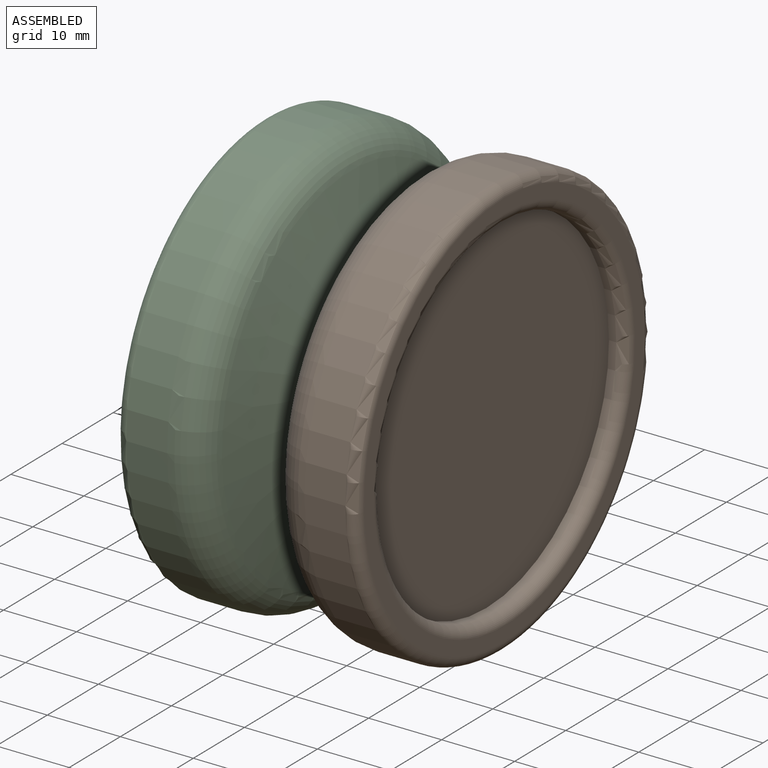
[diagram: assembled view]
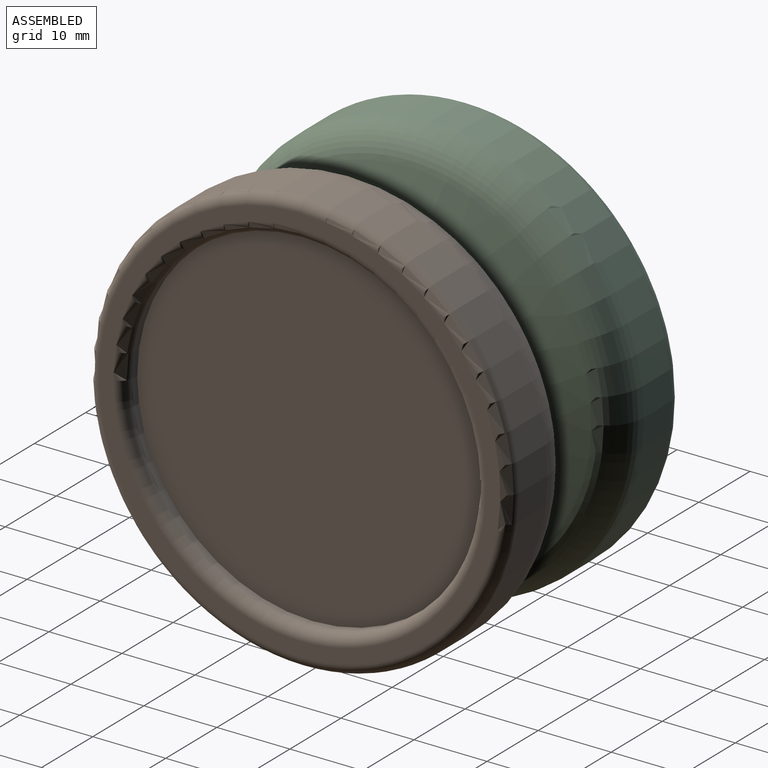
[diagram: assembled view, second angle]
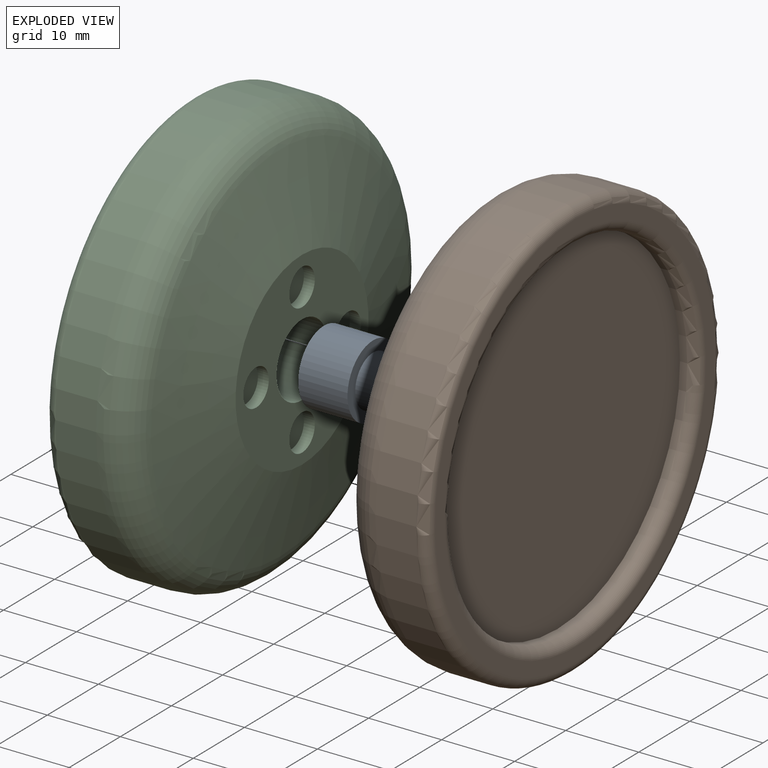
[diagram: exploded view]
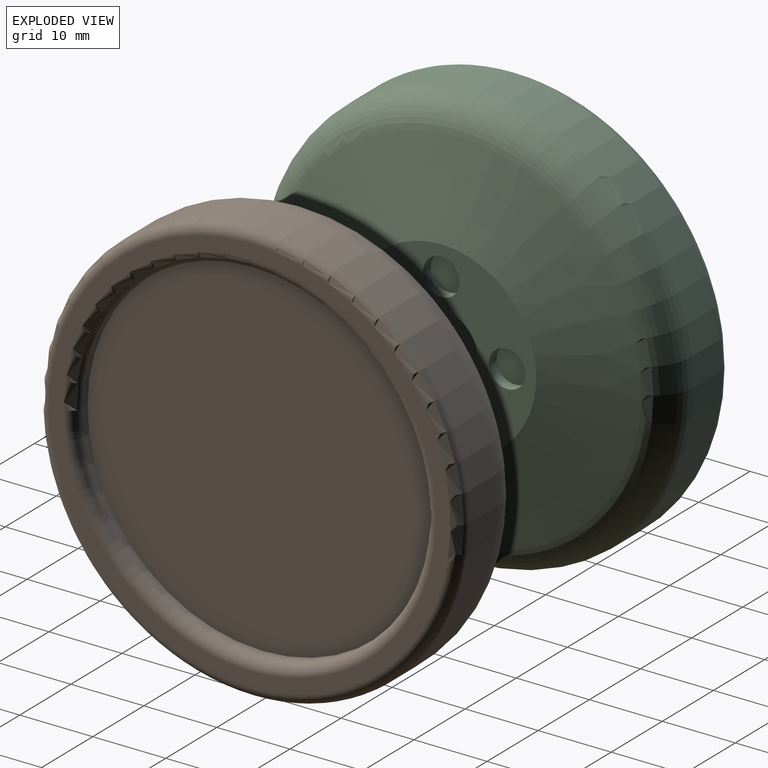
[diagram: exploded view, second angle]
ASSEMBLY  parts=3 mates=2
PART A: 7 faces, bbox 16.5x10x10 mm
  f0: plane 10x10mm, normal (1,0,0), area 78.5mm2, adj f1
  f1: cylinder r=5mm len=10mm, axis (1,0,0), area 212.1mm2, adj f0,f2
  f2: plane 10x10mm, normal (-1,0,0), area 40.1mm2, adj f1,f3
  f3: cylinder r=3.5mm len=7mm, axis (1,0,0), area 66mm2, adj f2,f4
  f4: plane 10x10mm, normal (1,0,0), area 40.1mm2, adj f3,f5
  f5: cylinder r=5mm len=10mm, axis (1,0,0), area 212.1mm2, adj f4,f6
  f6: plane 10x10mm, normal (-1,0,0), area 78.5mm2, adj f5
PART B: 19 faces, bbox 15x62.8x62.8 mm
  f0: cylinder r=24mm len=48mm, axis (-1,0,0), area 150.8mm2, adj f7,f9
  f1: plane 55x55mm, normal (1,0,0), area 333mm2, adj f9,f10
  f2: cylinder r=29mm len=58mm, axis (-1,0,0), area 1019.7mm2, adj f8,f10
  f3: cone r=29mm half-angle=76deg, axis (1,0,0), area 1511.2mm2, adj f4,f8
  f4: plane 26x26mm, normal (-1,0,0), area 373.8mm2, adj f3,f5,f11,f13,f15,f17
  f5: cylinder r=5mm len=10mm, axis (-1,0,0), area 212.1mm2, adj f4,f6
  f6: plane 10x10mm, normal (-1,0,0), area 78.5mm2, adj f5
  f7: plane 48x48mm, normal (1,0,0), area 1809.6mm2, adj f0
  f8: torus R=24mm, axis (1,0,0), area 1152mm2, adj f2,f3
  f9: torus R=25.5mm, axis (-1,0,0), area 363.4mm2, adj f0,f1
  f10: torus R=27.5mm, axis (-1,0,0), area 421.3mm2, adj f1,f2
  f11: cylinder r=2.5mm len=5mm, axis (-1,0,0), area 23.6mm2, adj f4,f12
  f12: plane 5x5mm, normal (-1,0,0), area 19.6mm2, adj f11
  f13: cylinder r=2.5mm len=5mm, axis (-1,0,0), area 23.6mm2, adj f4,f14
  f14: plane 5x5mm, normal (-1,0,0), area 19.6mm2, adj f13
  f15: cylinder r=2.5mm len=5mm, axis (-1,0,0), area 23.6mm2, adj f4,f16
  f16: plane 5x5mm, normal (-1,0,0), area 19.6mm2, adj f15
  f17: cylinder r=2.5mm len=5mm, axis (-1,0,0), area 23.6mm2, adj f4,f18
  f18: plane 5x5mm, normal (-1,0,0), area 19.6mm2, adj f17
PART C: same geometry as B
PLACE A t=(-12.16,0.38,-6.73)mm
PLACE B t=(-12.16,0.38,-6.73)mm
PLACE C rot(axis=(0,1,0),180deg) t=(-12.16,0.38,-6.73)mm
MATE slider B.f0 <-> A.f1  axis (-1,0,0) through (-10.66,0.38,-6.73)mm
MATE slider C.f0 <-> A.f1  axis (1,0,0) through (-13.66,0.38,-6.73)mm
